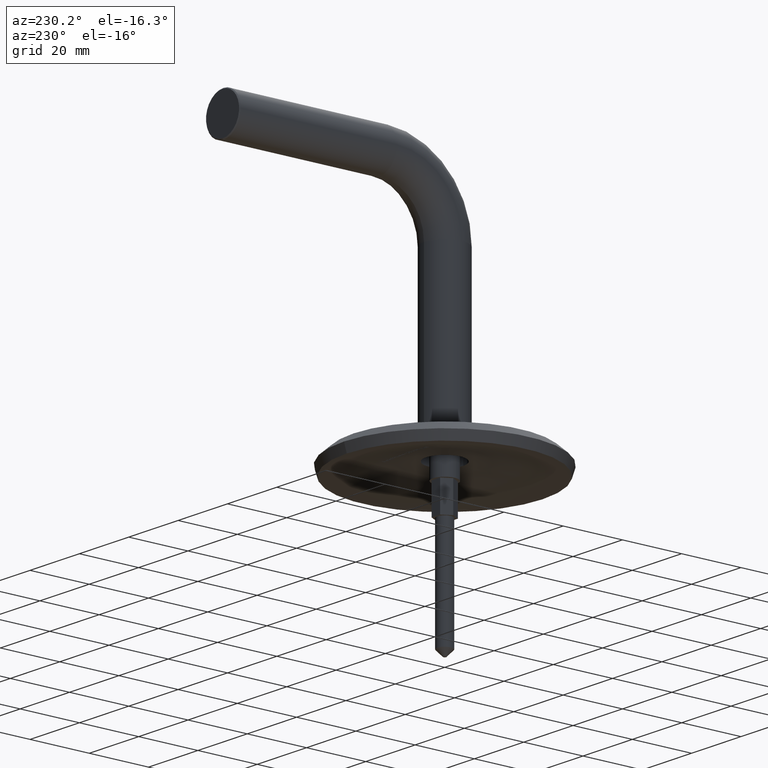
[diagram: clean part render]
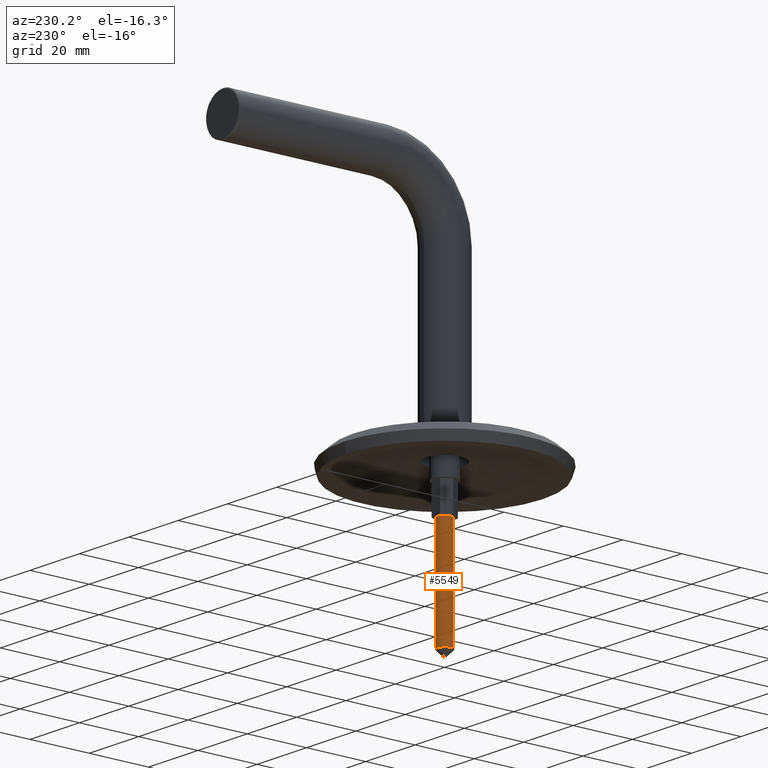
[diagram: same view with one face highlighted and labeled with its STEP entity id]
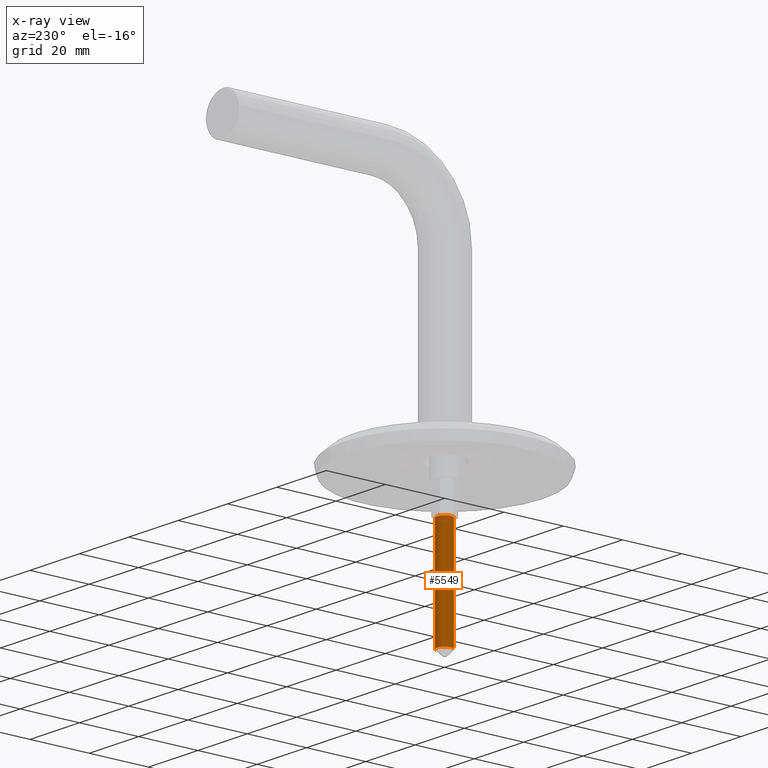
[diagram: x-ray of the same camera — body ghosted, the highlighted face saturated]
A machine part, auxiliary view. The second image highlights one B-rep face of the part: STEP entity #5549.
The next image is the same camera in x-ray: the body ghosted, the highlighted face saturated — about 0% of this face is hidden behind the body in this view.
In plain terms, the highlighted cylindrical surface (edge-blend (fillet) strip) has radius 2.5 mm, axis along (0, 0, -1).
Its self-contained STEP definition (entity closure, byte-faithful):
#1321 = CARTESIAN_POINT ( 'NONE',  ( 0.000000000000000000, 0.000000000000000000, -37.50000000000000000 ) ) ;
#1557 = VERTEX_POINT ( 'NONE', #10210 ) ;
#1861 = DIRECTION ( 'NONE',  ( 0.000000000000000000, 0.000000000000000000, 1.000000000000000000 ) ) ;
#2407 = EDGE_CURVE ( 'NONE', #13730, #9747, #6891, .T. ) ;
#2490 = ORIENTED_EDGE ( 'NONE', *, *, #12263, .T. ) ;
#2877 = ORIENTED_EDGE ( 'NONE', *, *, #7536, .F. ) ;
#2931 = EDGE_CURVE ( 'NONE', #9747, #5647, #8541, .T. ) ;
#3023 = ORIENTED_EDGE ( 'NONE', *, *, #2407, .T. ) ;
#3176 = CYLINDRICAL_SURFACE ( 'NONE', #6270, 2.500000000000000000 ) ;
#3373 = DIRECTION ( 'NONE',  ( 1.000000000000000000, 0.000000000000000000, 0.000000000000000000 ) ) ;
#3791 = AXIS2_PLACEMENT_3D ( 'NONE', #1321, #7745, #7897 ) ;
#4872 = EDGE_LOOP ( 'NONE', ( #2490, #3023, #6875, #2877 ) ) ;
#5052 = CARTESIAN_POINT ( 'NONE',  ( 2.500000000000000000, 0.000000000000000000, -37.50000000000000000 ) ) ;
#5549 = ADVANCED_FACE ( 'NONE', ( #12638 ), #3176, .T. ) ;
#5647 = VERTEX_POINT ( 'NONE', #5881 ) ;
#5838 = DIRECTION ( 'NONE',  ( 0.000000000000000000, 0.000000000000000000, 1.000000000000000000 ) ) ;
#5881 = CARTESIAN_POINT ( 'NONE',  ( 2.500000000000000000, 0.000000000000000000, -2.000000000000015543 ) ) ;
#6270 = AXIS2_PLACEMENT_3D ( 'NONE', #7966, #5838, #8100 ) ;
#6527 = VECTOR ( 'NONE', #1861, 1000.000000000000000 ) ;
#6875 = ORIENTED_EDGE ( 'NONE', *, *, #2931, .T. ) ;
#6891 = LINE ( 'NONE', #11135, #6527 ) ;
#7536 = EDGE_CURVE ( 'NONE', #1557, #5647, #8656, .T. ) ;
#7594 = AXIS2_PLACEMENT_3D ( 'NONE', #9721, #7617, #3373 ) ;
#7617 = DIRECTION ( 'NONE',  ( 0.000000000000000000, 0.000000000000000000, -1.000000000000000000 ) ) ;
#7745 = DIRECTION ( 'NONE',  ( 0.000000000000000000, -0.000000000000000000, 1.000000000000000000 ) ) ;
#7897 = DIRECTION ( 'NONE',  ( -1.000000000000000000, 0.000000000000000000, 0.000000000000000000 ) ) ;
#7966 = CARTESIAN_POINT ( 'NONE',  ( 0.000000000000000000, 0.000000000000000000, -37.50000000000000000 ) ) ;
#8100 = DIRECTION ( 'NONE',  ( 1.000000000000000000, 0.000000000000000000, 0.000000000000000000 ) ) ;
#8541 = CIRCLE ( 'NONE', #7594, 2.500000000000000000 ) ;
#8656 = LINE ( 'NONE', #5052, #12944 ) ;
#9007 = CARTESIAN_POINT ( 'NONE',  ( -2.500000000000000000, 3.061616997868383141E-16, -37.50000000000000000 ) ) ;
#9721 = CARTESIAN_POINT ( 'NONE',  ( 0.000000000000000000, 0.000000000000000000, -2.000000000000015543 ) ) ;
#9747 = VERTEX_POINT ( 'NONE', #11591 ) ;
#10210 = CARTESIAN_POINT ( 'NONE',  ( 2.500000000000000000, 0.000000000000000000, -37.50000000000000000 ) ) ;
#10338 = DIRECTION ( 'NONE',  ( 0.000000000000000000, 0.000000000000000000, 1.000000000000000000 ) ) ;
#11135 = CARTESIAN_POINT ( 'NONE',  ( -2.500000000000000000, 3.061616997868383141E-16, -37.50000000000000000 ) ) ;
#11591 = CARTESIAN_POINT ( 'NONE',  ( -2.500000000000000000, 3.061616997868383141E-16, -2.000000000000015543 ) ) ;
#12252 = CIRCLE ( 'NONE', #3791, 2.500000000000000000 ) ;
#12263 = EDGE_CURVE ( 'NONE', #1557, #13730, #12252, .T. ) ;
#12638 = FACE_OUTER_BOUND ( 'NONE', #4872, .T. ) ;
#12944 = VECTOR ( 'NONE', #10338, 1000.000000000000000 ) ;
#13730 = VERTEX_POINT ( 'NONE', #9007 ) ;